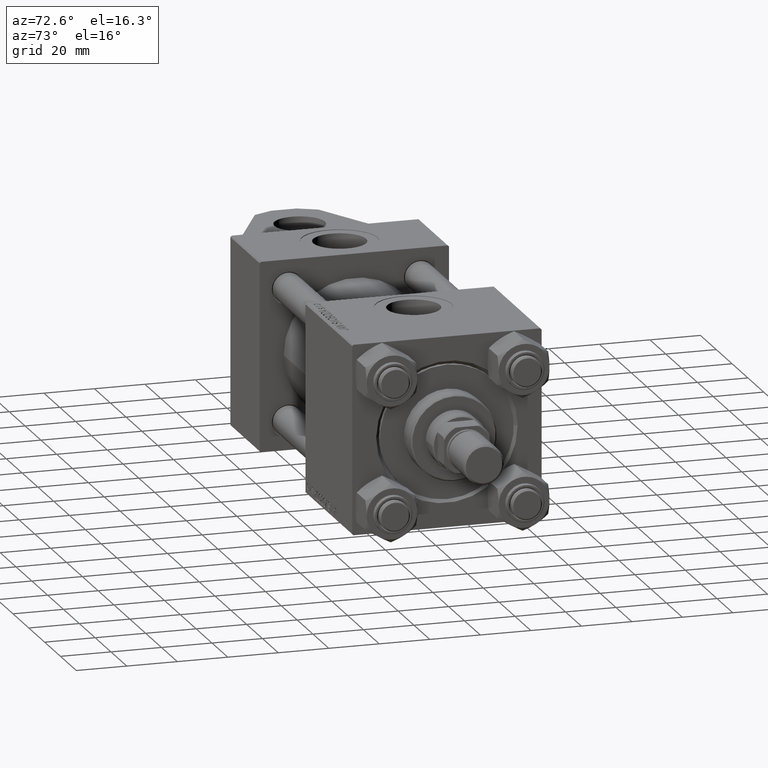
[diagram: clean part render]
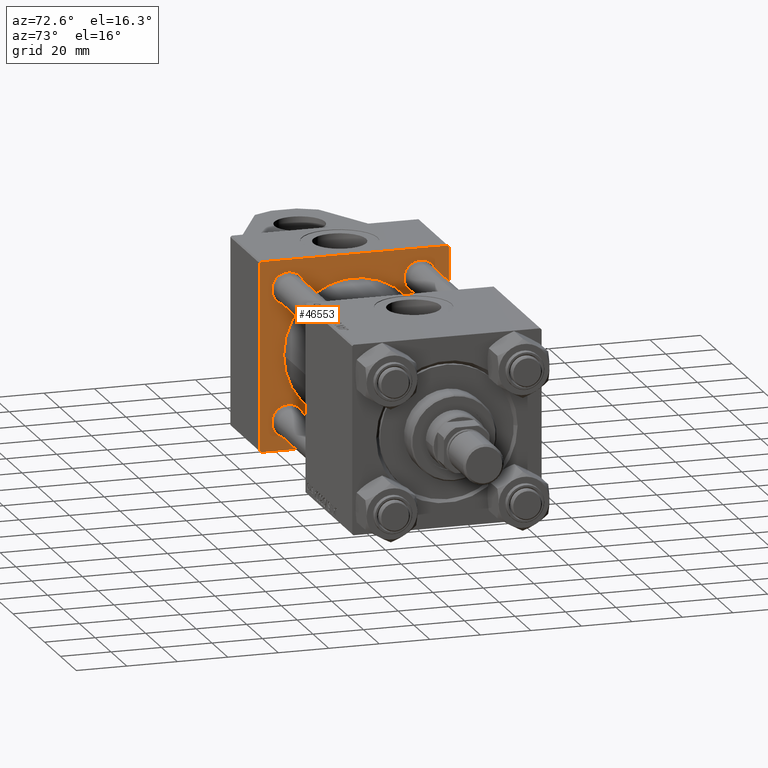
[diagram: same view with one face highlighted and labeled with its STEP entity id]
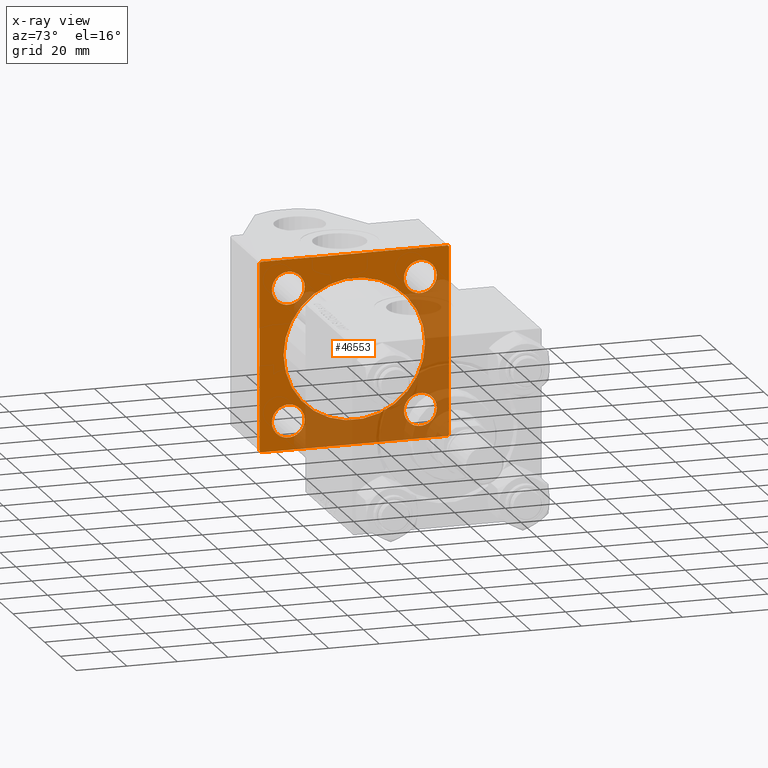
[diagram: x-ray of the same camera — body ghosted, the highlighted face saturated]
A machine part, auxiliary view. The second image highlights one B-rep face of the part: STEP entity #46553.
The next image is the same camera in x-ray: the body ghosted, the highlighted face saturated — about 46% of this face is hidden behind the body in this view.
In plain terms, the highlighted planar face has unit normal (-1, 0, -0).
Its self-contained STEP definition (entity closure, byte-faithful):
#113 = CARTESIAN_POINT ( 'NONE',  ( 37.00000000000000000, -26.14999999999999147, -26.15000000000000924 ) ) ;
#217 = EDGE_CURVE ( 'NONE', #44205, #15689, #39816, .T. ) ;
#667 = ORIENTED_EDGE ( 'NONE', *, *, #23830, .T. ) ;
#673 = EDGE_CURVE ( 'NONE', #15718, #3795, #22191, .T. ) ;
#1055 = AXIS2_PLACEMENT_3D ( 'NONE', #2204, #29641, #18307 ) ;
#1376 = DIRECTION ( 'NONE',  ( -1.000000000000000000, 0.000000000000000000, -0.000000000000000000 ) ) ;
#1911 = AXIS2_PLACEMENT_3D ( 'NONE', #34345, #1376, #9296 ) ;
#2025 = LINE ( 'NONE', #46072, #2124 ) ;
#2124 = VECTOR ( 'NONE', #47120, 1000.000000000000000 ) ;
#2204 = CARTESIAN_POINT ( 'NONE',  ( 37.00000000000000000, -26.14999999999999147, 26.15000000000000924 ) ) ;
#2294 = CARTESIAN_POINT ( 'NONE',  ( 37.00000000000000000, -26.14999999999999147, -32.64999999999997016 ) ) ;
#3795 = VERTEX_POINT ( 'NONE', #28867 ) ;
#3815 = VECTOR ( 'NONE', #51042, 1000.000000000000114 ) ;
#4324 = CARTESIAN_POINT ( 'NONE',  ( 37.00000000000000000, 26.14999999999999858, -26.15000000000000213 ) ) ;
#4622 = VERTEX_POINT ( 'NONE', #7292 ) ;
#4864 = ORIENTED_EDGE ( 'NONE', *, *, #7284, .T. ) ;
#5543 = ORIENTED_EDGE ( 'NONE', *, *, #48278, .T. ) ;
#6119 = DIRECTION ( 'NONE',  ( 0.000000000000000000, -1.000000000000000000, -9.251858538542972814E-17 ) ) ;
#6328 = CARTESIAN_POINT ( 'NONE',  ( 37.00000000000000000, 26.14999999999999858, -32.64999999999994884 ) ) ;
#6342 = VERTEX_POINT ( 'NONE', #41076 ) ;
#6448 = DIRECTION ( 'NONE',  ( 0.000000000000000000, 0.000000000000000000, 1.000000000000000000 ) ) ;
#6995 = LINE ( 'NONE', #47334, #3815 ) ;
#7125 = CARTESIAN_POINT ( 'NONE',  ( 37.00000000000000000, 37.49999999999999289, 37.00000000000000000 ) ) ;
#7284 = EDGE_CURVE ( 'NONE', #31693, #30701, #2025, .T. ) ;
#7292 = CARTESIAN_POINT ( 'NONE',  ( 37.00000000000000000, 36.99999999999997868, -37.50000000000000000 ) ) ;
#8691 = AXIS2_PLACEMENT_3D ( 'NONE', #51123, #34783, #29778 ) ;
#9291 = VERTEX_POINT ( 'NONE', #2294 ) ;
#9296 = DIRECTION ( 'NONE',  ( 0.000000000000000000, 0.000000000000000000, 1.000000000000000000 ) ) ;
#9717 = ORIENTED_EDGE ( 'NONE', *, *, #20938, .T. ) ;
#10149 = DIRECTION ( 'NONE',  ( 0.000000000000000000, 0.7071067811865524577, -0.7071067811865426878 ) ) ;
#10351 = ORIENTED_EDGE ( 'NONE', *, *, #40058, .T. ) ;
#10843 = DIRECTION ( 'NONE',  ( 0.000000000000000000, 0.000000000000000000, -1.000000000000000000 ) ) ;
#12064 = CARTESIAN_POINT ( 'NONE',  ( 37.00000000000000000, -26.14999999999999147, -26.15000000000000924 ) ) ;
#12390 = EDGE_LOOP ( 'NONE', ( #667, #19376 ) ) ;
#12681 = CARTESIAN_POINT ( 'NONE',  ( 37.00000000000000000, -37.50000000000000711, 36.99999999999999289 ) ) ;
#12812 = ORIENTED_EDGE ( 'NONE', *, *, #44637, .T. ) ;
#13112 = VECTOR ( 'NONE', #6119, 1000.000000000000000 ) ;
#13123 = CARTESIAN_POINT ( 'NONE',  ( 37.00000000000000000, 37.49999999999999289, -36.99999999999998579 ) ) ;
#13383 = AXIS2_PLACEMENT_3D ( 'NONE', #4324, #32816, #41492 ) ;
#13854 = ORIENTED_EDGE ( 'NONE', *, *, #25607, .T. ) ;
#14106 = LINE ( 'NONE', #46272, #42203 ) ;
#14216 = VERTEX_POINT ( 'NONE', #6328 ) ;
#15102 = VERTEX_POINT ( 'NONE', #7125 ) ;
#15689 = VERTEX_POINT ( 'NONE', #33398 ) ;
#15718 = VERTEX_POINT ( 'NONE', #25233 ) ;
#16035 = DIRECTION ( 'NONE',  ( 1.000000000000000000, -0.000000000000000000, 0.000000000000000000 ) ) ;
#16987 = FACE_OUTER_BOUND ( 'NONE', #50582, .T. ) ;
#17032 = EDGE_CURVE ( 'NONE', #9291, #18930, #20171, .T. ) ;
#17118 = VECTOR ( 'NONE', #10843, 1000.000000000000000 ) ;
#17440 = CARTESIAN_POINT ( 'NONE',  ( 37.00000000000000000, -26.14999999999999147, 32.64999999999997726 ) ) ;
#18042 = AXIS2_PLACEMENT_3D ( 'NONE', #113, #39977, #36018 ) ;
#18307 = DIRECTION ( 'NONE',  ( 0.000000000000000000, 0.000000000000000000, 1.000000000000000000 ) ) ;
#18330 = CARTESIAN_POINT ( 'NONE',  ( 37.00000000000000000, -3.469446951953614189E-15, 0.000000000000000000 ) ) ;
#18930 = VERTEX_POINT ( 'NONE', #35889 ) ;
#19112 = EDGE_LOOP ( 'NONE', ( #9717, #42524 ) ) ;
#19376 = ORIENTED_EDGE ( 'NONE', *, *, #217, .T. ) ;
#19609 = ORIENTED_EDGE ( 'NONE', *, *, #673, .F. ) ;
#19772 = VERTEX_POINT ( 'NONE', #39846 ) ;
#20171 = CIRCLE ( 'NONE', #51298, 6.499999999999960920 ) ;
#20789 = DIRECTION ( 'NONE',  ( 0.000000000000000000, -1.000000000000000000, -9.251858538542971581E-17 ) ) ;
#20938 = EDGE_CURVE ( 'NONE', #14216, #6342, #27740, .T. ) ;
#21564 = ORIENTED_EDGE ( 'NONE', *, *, #17032, .T. ) ;
#21804 = CARTESIAN_POINT ( 'NONE',  ( 37.00000000000000000, 37.49999999999999289, -36.99999999999998579 ) ) ;
#22065 = LINE ( 'NONE', #13123, #41823 ) ;
#22191 = CIRCLE ( 'NONE', #25551, 28.00000000000000000 ) ;
#23830 = EDGE_CURVE ( 'NONE', #15689, #44205, #43834, .T. ) ;
#24105 = EDGE_CURVE ( 'NONE', #30474, #34836, #42961, .T. ) ;
#24633 = CARTESIAN_POINT ( 'NONE',  ( 37.00000000000000000, 0.000000000000000000, 0.000000000000000000 ) ) ;
#24742 = CIRCLE ( 'NONE', #8691, 6.499999999999946709 ) ;
#25163 = FACE_BOUND ( 'NONE', #12390, .T. ) ;
#25233 = CARTESIAN_POINT ( 'NONE',  ( 37.00000000000000000, -4.043591434102586818E-17, -28.00000000000000000 ) ) ;
#25238 = DIRECTION ( 'NONE',  ( -1.000000000000000000, 0.000000000000000000, -0.000000000000000000 ) ) ;
#25551 = AXIS2_PLACEMENT_3D ( 'NONE', #43994, #16035, #32120 ) ;
#25575 = EDGE_CURVE ( 'NONE', #3795, #15718, #30429, .T. ) ;
#25607 = EDGE_CURVE ( 'NONE', #30701, #19772, #14106, .T. ) ;
#25797 = ORIENTED_EDGE ( 'NONE', *, *, #25575, .F. ) ;
#26410 = LINE ( 'NONE', #38000, #17118 ) ;
#26413 = VECTOR ( 'NONE', #48528, 1000.000000000000114 ) ;
#27740 = CIRCLE ( 'NONE', #13383, 6.499999999999946709 ) ;
#27901 = CARTESIAN_POINT ( 'NONE',  ( 37.00000000000000000, -26.14999999999999147, 26.15000000000000924 ) ) ;
#28867 = CARTESIAN_POINT ( 'NONE',  ( 37.00000000000000000, -3.469446951953614189E-15, 28.00000000000000000 ) ) ;
#28924 = EDGE_LOOP ( 'NONE', ( #10351, #48232 ) ) ;
#29044 = CARTESIAN_POINT ( 'NONE',  ( 37.00000000000000000, 26.14999999999999858, 19.65000000000005187 ) ) ;
#29090 = ORIENTED_EDGE ( 'NONE', *, *, #45560, .F. ) ;
#29616 = EDGE_LOOP ( 'NONE', ( #21564, #35395 ) ) ;
#29641 = DIRECTION ( 'NONE',  ( -1.000000000000000000, 0.000000000000000000, -0.000000000000000000 ) ) ;
#29778 = DIRECTION ( 'NONE',  ( 0.000000000000000000, 0.000000000000000000, 1.000000000000000000 ) ) ;
#30429 = CIRCLE ( 'NONE', #32950, 28.00000000000000000 ) ;
#30474 = VERTEX_POINT ( 'NONE', #44191 ) ;
#30701 = VERTEX_POINT ( 'NONE', #31231 ) ;
#31190 = AXIS2_PLACEMENT_3D ( 'NONE', #41692, #42741, #50123 ) ;
#31231 = CARTESIAN_POINT ( 'NONE',  ( 37.00000000000000000, -37.50000000000000000, -37.00000000000003553 ) ) ;
#31530 = EDGE_CURVE ( 'NONE', #6342, #14216, #24742, .T. ) ;
#31617 = CARTESIAN_POINT ( 'NONE',  ( 37.00000000000000000, -37.50000000000000711, 36.99999999999999289 ) ) ;
#31693 = VERTEX_POINT ( 'NONE', #31617 ) ;
#32120 = DIRECTION ( 'NONE',  ( 0.000000000000000000, 0.000000000000000000, 1.000000000000000000 ) ) ;
#32285 = DIRECTION ( 'NONE',  ( -1.000000000000000000, 0.000000000000000000, -0.000000000000000000 ) ) ;
#32799 = ORIENTED_EDGE ( 'NONE', *, *, #36438, .F. ) ;
#32804 = FACE_BOUND ( 'NONE', #33867, .T. ) ;
#32816 = DIRECTION ( 'NONE',  ( -1.000000000000000000, 0.000000000000000000, -0.000000000000000000 ) ) ;
#32866 = EDGE_CURVE ( 'NONE', #18930, #9291, #48317, .T. ) ;
#32950 = AXIS2_PLACEMENT_3D ( 'NONE', #18330, #34412, #6448 ) ;
#33398 = CARTESIAN_POINT ( 'NONE',  ( 37.00000000000000000, -26.14999999999999147, 19.65000000000004121 ) ) ;
#33867 = EDGE_LOOP ( 'NONE', ( #25797, #19609 ) ) ;
#34345 = CARTESIAN_POINT ( 'NONE',  ( 37.00000000000000000, 26.14999999999999858, 26.15000000000000213 ) ) ;
#34352 = CARTESIAN_POINT ( 'NONE',  ( 37.00000000000000000, 37.49999999999999289, -37.50000000000000000 ) ) ;
#34412 = DIRECTION ( 'NONE',  ( 1.000000000000000000, -0.000000000000000000, 0.000000000000000000 ) ) ;
#34783 = DIRECTION ( 'NONE',  ( -1.000000000000000000, 0.000000000000000000, -0.000000000000000000 ) ) ;
#34836 = VERTEX_POINT ( 'NONE', #29044 ) ;
#35395 = ORIENTED_EDGE ( 'NONE', *, *, #32866, .T. ) ;
#35889 = CARTESIAN_POINT ( 'NONE',  ( 37.00000000000000000, -26.14999999999999147, -19.65000000000004832 ) ) ;
#36018 = DIRECTION ( 'NONE',  ( 0.000000000000000000, 0.000000000000000000, 1.000000000000000000 ) ) ;
#36438 = EDGE_CURVE ( 'NONE', #15102, #51224, #26410, .T. ) ;
#36736 = AXIS2_PLACEMENT_3D ( 'NONE', #24633, #32285, #48875 ) ;
#37270 = FACE_BOUND ( 'NONE', #28924, .T. ) ;
#38000 = CARTESIAN_POINT ( 'NONE',  ( 37.00000000000000000, 37.49999999999999289, 37.50000000000000000 ) ) ;
#39463 = DIRECTION ( 'NONE',  ( -0.000000000000000000, 0.7071067811865474617, 0.7071067811865474617 ) ) ;
#39816 = CIRCLE ( 'NONE', #1055, 6.499999999999968026 ) ;
#39846 = CARTESIAN_POINT ( 'NONE',  ( 37.00000000000000000, -37.00000000000002132, -37.50000000000000711 ) ) ;
#39977 = DIRECTION ( 'NONE',  ( -1.000000000000000000, 0.000000000000000000, -0.000000000000000000 ) ) ;
#40015 = DIRECTION ( 'NONE',  ( -1.000000000000000000, 0.000000000000000000, -0.000000000000000000 ) ) ;
#40058 = EDGE_CURVE ( 'NONE', #34836, #30474, #44057, .T. ) ;
#40287 = EDGE_CURVE ( 'NONE', #50685, #31693, #51988, .T. ) ;
#40553 = VERTEX_POINT ( 'NONE', #48207 ) ;
#41076 = CARTESIAN_POINT ( 'NONE',  ( 37.00000000000000000, 26.14999999999999858, -19.65000000000005542 ) ) ;
#41226 = PLANE ( 'NONE',  #36736 ) ;
#41271 = ORIENTED_EDGE ( 'NONE', *, *, #40287, .T. ) ;
#41492 = DIRECTION ( 'NONE',  ( 0.000000000000000000, 0.000000000000000000, 1.000000000000000000 ) ) ;
#41692 = CARTESIAN_POINT ( 'NONE',  ( 37.00000000000000000, 26.14999999999999858, 26.15000000000000213 ) ) ;
#41823 = VECTOR ( 'NONE', #39463, 1000.000000000000114 ) ;
#42203 = VECTOR ( 'NONE', #10149, 1000.000000000000000 ) ;
#42524 = ORIENTED_EDGE ( 'NONE', *, *, #31530, .T. ) ;
#42741 = DIRECTION ( 'NONE',  ( -1.000000000000000000, 0.000000000000000000, -0.000000000000000000 ) ) ;
#42961 = CIRCLE ( 'NONE', #31190, 6.499999999999953815 ) ;
#43834 = CIRCLE ( 'NONE', #44648, 6.499999999999968026 ) ;
#43994 = CARTESIAN_POINT ( 'NONE',  ( 37.00000000000000000, -3.469446951953614189E-15, 0.000000000000000000 ) ) ;
#44057 = CIRCLE ( 'NONE', #1911, 6.499999999999953815 ) ;
#44191 = CARTESIAN_POINT ( 'NONE',  ( 37.00000000000000000, 26.14999999999999858, 32.64999999999995595 ) ) ;
#44205 = VERTEX_POINT ( 'NONE', #17440 ) ;
#44637 = EDGE_CURVE ( 'NONE', #15102, #40553, #6995, .T. ) ;
#44648 = AXIS2_PLACEMENT_3D ( 'NONE', #27901, #40015, #44737 ) ;
#44667 = FACE_BOUND ( 'NONE', #29616, .T. ) ;
#44737 = DIRECTION ( 'NONE',  ( 0.000000000000000000, 0.000000000000000000, 1.000000000000000000 ) ) ;
#45064 = VECTOR ( 'NONE', #20789, 1000.000000000000000 ) ;
#45195 = EDGE_CURVE ( 'NONE', #40553, #50685, #45304, .T. ) ;
#45262 = DIRECTION ( 'NONE',  ( 0.000000000000000000, 0.000000000000000000, 1.000000000000000000 ) ) ;
#45304 = LINE ( 'NONE', #48728, #45064 ) ;
#45560 = EDGE_CURVE ( 'NONE', #4622, #19772, #46734, .T. ) ;
#46072 = CARTESIAN_POINT ( 'NONE',  ( 37.00000000000000000, -37.50000000000000711, 37.49999999999999289 ) ) ;
#46272 = CARTESIAN_POINT ( 'NONE',  ( 37.00000000000000000, -37.00000000000002132, -37.50000000000000711 ) ) ;
#46553 = ADVANCED_FACE ( 'NONE', ( #32804, #37270, #25163, #44667, #49138, #16987 ), #41226, .F. ) ;
#46734 = LINE ( 'NONE', #34352, #13112 ) ;
#46954 = ORIENTED_EDGE ( 'NONE', *, *, #45195, .T. ) ;
#47120 = DIRECTION ( 'NONE',  ( 0.000000000000000000, 9.251858538542971581E-17, -1.000000000000000000 ) ) ;
#47334 = CARTESIAN_POINT ( 'NONE',  ( 37.00000000000000000, 36.99999999999999289, 37.50000000000000000 ) ) ;
#48207 = CARTESIAN_POINT ( 'NONE',  ( 37.00000000000000000, 36.99999999999999289, 37.50000000000000000 ) ) ;
#48232 = ORIENTED_EDGE ( 'NONE', *, *, #24105, .T. ) ;
#48278 = EDGE_CURVE ( 'NONE', #4622, #51224, #22065, .T. ) ;
#48317 = CIRCLE ( 'NONE', #18042, 6.499999999999960920 ) ;
#48528 = DIRECTION ( 'NONE',  ( -0.000000000000000000, -0.7071067811865474617, -0.7071067811865474617 ) ) ;
#48628 = CARTESIAN_POINT ( 'NONE',  ( 37.00000000000000000, -37.00000000000000711, 37.49999999999999289 ) ) ;
#48728 = CARTESIAN_POINT ( 'NONE',  ( 37.00000000000000000, 37.49999999999999289, 37.50000000000000000 ) ) ;
#48875 = DIRECTION ( 'NONE',  ( -0.000000000000000000, 0.000000000000000000, 1.000000000000000000 ) ) ;
#49138 = FACE_BOUND ( 'NONE', #19112, .T. ) ;
#50123 = DIRECTION ( 'NONE',  ( 0.000000000000000000, 0.000000000000000000, 1.000000000000000000 ) ) ;
#50582 = EDGE_LOOP ( 'NONE', ( #29090, #5543, #32799, #12812, #46954, #41271, #4864, #13854 ) ) ;
#50685 = VERTEX_POINT ( 'NONE', #48628 ) ;
#51042 = DIRECTION ( 'NONE',  ( 0.000000000000000000, -0.7071067811865474617, 0.7071067811865474617 ) ) ;
#51123 = CARTESIAN_POINT ( 'NONE',  ( 37.00000000000000000, 26.14999999999999858, -26.15000000000000213 ) ) ;
#51224 = VERTEX_POINT ( 'NONE', #21804 ) ;
#51298 = AXIS2_PLACEMENT_3D ( 'NONE', #12064, #25238, #45262 ) ;
#51988 = LINE ( 'NONE', #12681, #26413 ) ;